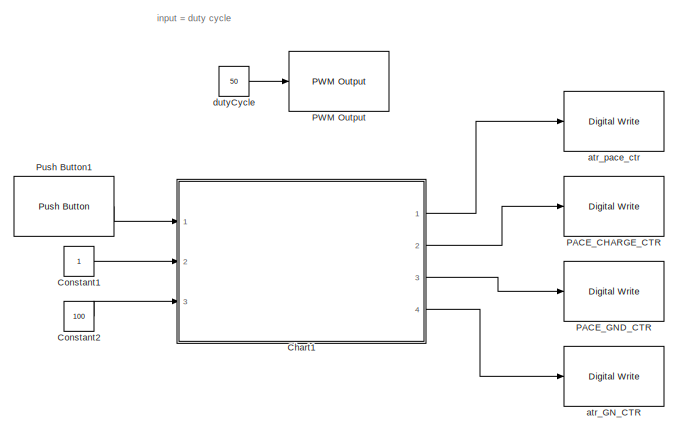
[diagram: root canvas - part 1/3, top right region]
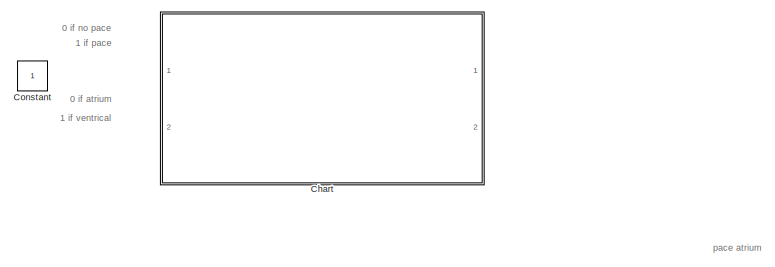
[diagram: root canvas - part 2/3, middle left region]
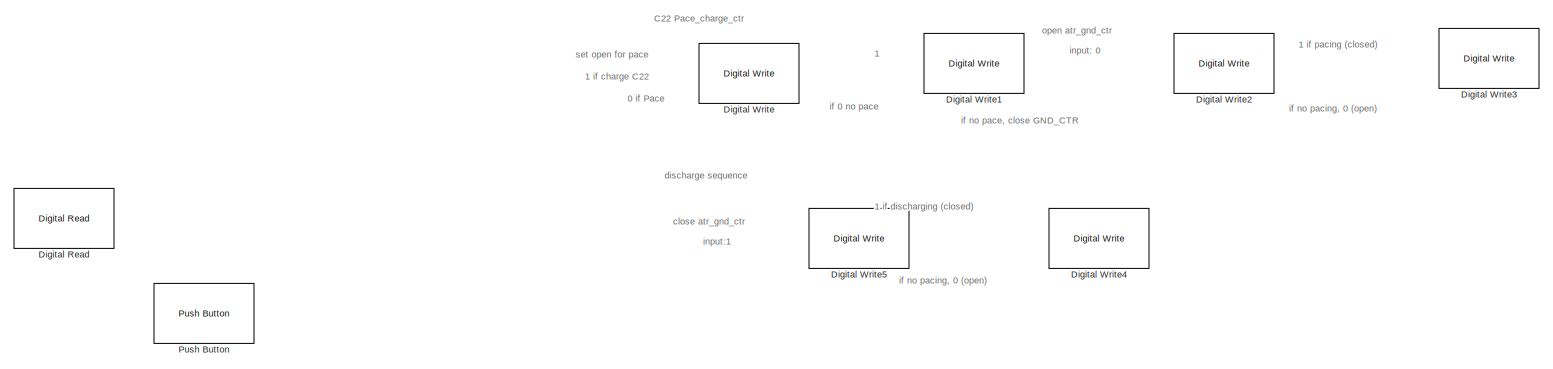
[diagram: root canvas - part 3/3, full width, bottom band]
MODEL slx_1887fcb466a2
KIND model
CONFIG AbsTol = auto
CONFIG EnableMultiTasking = on
CONFIG FixedStep = 1e-3
CONFIG MaxStep = auto
CONFIG MinStep = auto
CONFIG RelTol = 1e-3
CONFIG SampleTimeConstraint = Unconstrained
CONFIG Solver = FixedStepAuto
CONFIG SolverName = FixedStepAuto
CONFIG StartTime = 0.0
CONFIG StopTime = 10.0
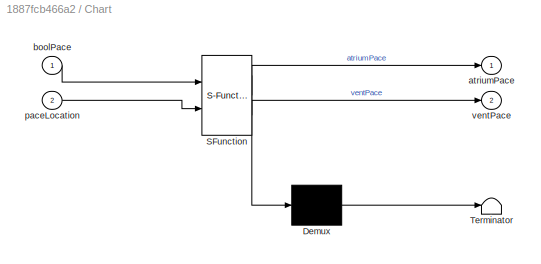
BLOCK [SubSystem] Chart
  Commented = on
  ErrorFcn = Stateflow.Translate.translate
  PermitHierarchicalResolution = ExplicitOnly
  Ports = [2, 2]
  RequestExecContextInheritance = off
  SFBlockType = Chart
  TreatAsAtomicUnit = on
BLOCK [Demux] Chart/ Demux 
  Outputs = 1
  Ports = [1, 1]
BLOCK [S-Function] Chart/ SFunction 
  EnableBusSupport = on
  FunctionName = sf_sfun
  PortCounts = [2 3]
  Ports = [2, 3]
  SFcnIsStateOwnerBlock = off
  SFunctionDeploymentMode = off
  Tag = Stateflow S-Function 3
BLOCK [Terminator] Chart/ Terminator 
BLOCK [Outport] Chart/atriumPace
BLOCK [Inport] Chart/boolPace
BLOCK [Inport] Chart/paceLocation
  Port = 2
BLOCK [Outport] Chart/ventPace
  Port = 2
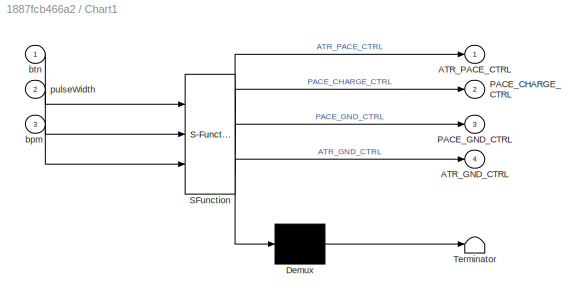
BLOCK [SubSystem] Chart1
  ErrorFcn = Stateflow.Translate.translate
  PermitHierarchicalResolution = ExplicitOnly
  Ports = [3, 4]
  RequestExecContextInheritance = off
  SFBlockType = Chart
  TreatAsAtomicUnit = on
BLOCK [Demux] Chart1/ Demux 
  Outputs = 1
  Ports = [1, 1]
BLOCK [S-Function] Chart1/ SFunction 
  EnableBusSupport = on
  FunctionName = sf_sfun
  PortCounts = [3 5]
  Ports = [3, 5]
  SFcnIsStateOwnerBlock = off
  SFunctionDeploymentMode = off
  Tag = Stateflow S-Function 1
BLOCK [Terminator] Chart1/ Terminator 
BLOCK [Outport] Chart1/ATR_GND_CTRL
  Port = 4
BLOCK [Outport] Chart1/ATR_PACE_CTRL
BLOCK [Outport] Chart1/PACE_CHARGE_CTRL
  Port = 2
BLOCK [Outport] Chart1/PACE_GND_CTRL
  Port = 3
BLOCK [Inport] Chart1/bpm
  Port = 3
BLOCK [Inport] Chart1/btn
BLOCK [Inport] Chart1/pulseWidth
  Port = 2
BLOCK [Constant] Constant
  Commented = on
BLOCK [Constant] Constant1
BLOCK [Constant] Constant2
  Value = 100
BLOCK [Reference] Digital Read  REF=frdmk64flib/Digital Read
  Commented = on
  Ports = [0, 1]
  SourceBlock = frdmk64flib/Digital Read
  SourceProductBaseCode = EC_FRDM_K64F
  SourceType = freedomk64f.DigitalRead
BLOCK [Reference] Digital Write  REF=frdmk64flib/Digital Write
  Commented = on
  Ports = [1]
  SourceBlock = frdmk64flib/Digital Write
  SourceProductBaseCode = EC_FRDM_K64F
  SourceType = freedomk64f.DigitalWrite
BLOCK [Reference] Digital Write1  REF=frdmk64flib/Digital Write
  Commented = on
  Ports = [1]
  SourceBlock = frdmk64flib/Digital Write
  SourceProductBaseCode = EC_FRDM_K64F
  SourceType = freedomk64f.DigitalWrite
BLOCK [Reference] Digital Write2  REF=frdmk64flib/Digital Write
  Commented = on
  Ports = [1]
  SourceBlock = frdmk64flib/Digital Write
  SourceProductBaseCode = EC_FRDM_K64F
  SourceType = freedomk64f.DigitalWrite
BLOCK [Reference] Digital Write3  REF=frdmk64flib/Digital Write
  Commented = on
  Ports = [1]
  SourceBlock = frdmk64flib/Digital Write
  SourceProductBaseCode = EC_FRDM_K64F
  SourceType = freedomk64f.DigitalWrite
BLOCK [Reference] Digital Write4  REF=frdmk64flib/Digital Write
  Commented = on
  Ports = [1]
  SourceBlock = frdmk64flib/Digital Write
  SourceProductBaseCode = EC_FRDM_K64F
  SourceType = freedomk64f.DigitalWrite
BLOCK [Reference] Digital Write5  REF=frdmk64flib/Digital Write
  Commented = on
  Ports = [1]
  SourceBlock = frdmk64flib/Digital Write
  SourceProductBaseCode = EC_FRDM_K64F
  SourceType = freedomk64f.DigitalWrite
BLOCK [Reference] PACE_CHARGE_CTR  REF=frdmk64flib/Digital Write
  Ports = [1]
  SourceBlock = frdmk64flib/Digital Write
  SourceProductBaseCode = EC_FRDM_K64F
  SourceType = freedomk64f.DigitalWrite
BLOCK [Reference] PACE_GND_CTR  REF=frdmk64flib/Digital Write
  Ports = [1]
  SourceBlock = frdmk64flib/Digital Write
  SourceProductBaseCode = EC_FRDM_K64F
  SourceType = freedomk64f.DigitalWrite
BLOCK [Reference] PWM Output  REF=frdmk64flib/PWM Output
  Ports = [1]
  SourceBlock = frdmk64flib/PWM Output
  SourceProductBaseCode = EC_FRDM_K64F
  SourceType = freedomk64f.PWMOutput
BLOCK [Reference] Push Button  REF=frdmk64flib/Push Button
  Commented = on
  Ports = [0, 1]
  SourceBlock = frdmk64flib/Push Button
  SourceProductBaseCode = EC_FRDM_K64F
  SourceType = freedomk64f.PushButton
BLOCK [Reference] Push Button1  REF=frdmk64flib/Push Button
  Ports = [0, 1]
  SourceBlock = frdmk64flib/Push Button
  SourceProductBaseCode = EC_FRDM_K64F
  SourceType = freedomk64f.PushButton
BLOCK [Reference] atr_GN_CTR  REF=frdmk64flib/Digital Write
  Ports = [1]
  SourceBlock = frdmk64flib/Digital Write
  SourceProductBaseCode = EC_FRDM_K64F
  SourceType = freedomk64f.DigitalWrite
BLOCK [Reference] atr_pace_ctr  REF=frdmk64flib/Digital Write
  Ports = [1]
  SourceBlock = frdmk64flib/Digital Write
  SourceProductBaseCode = EC_FRDM_K64F
  SourceType = freedomk64f.DigitalWrite
BLOCK [Constant] dutyCycle
  Value = 50
ANNOTATION (root): 0 if Pace
ANNOTATION (root): 0 if atrium
ANNOTATION (root): 0 if no pace
ANNOTATION (root): 1
ANNOTATION (root): 1 if charge C22
ANNOTATION (root): 1 if discharging (closed)
ANNOTATION (root): 1 if pace
ANNOTATION (root): 1 if pacing (closed)
ANNOTATION (root): 1 if ventrical
ANNOTATION (root): C22 Pace_charge_ctr
ANNOTATION (root): close atr_gnd_ctr
ANNOTATION (root): discharge sequence
ANNOTATION (root): if 0 no pace
ANNOTATION (root): if no pace, close GND_CTR
ANNOTATION (root): if no pacing, 0 (open)
ANNOTATION (root): input = duty cycle
ANNOTATION (root): input: 0
ANNOTATION (root): input:1
ANNOTATION (root): open atr_gnd_ctr
ANNOTATION (root): pace atrium
ANNOTATION (root): set open for pace
LINE Chart1:1 -> atr_pace_ctr:1
LINE Chart1:2 -> PACE_CHARGE_CTR:1
LINE Chart1:3 -> PACE_GND_CTR:1
LINE Chart1:4 -> atr_GN_CTR:1
LINE Constant1:1 -> Chart1:2
LINE Constant2:1 -> Chart1:3
LINE Push Button1:1 -> Chart1:1
LINE dutyCycle:1 -> PWM Output:1
CHART Chart1 states=4 transitions=3
  STATE_LABEL 'beats per minute'
  STATE_LABEL 'CHARGING_AND_DISCHARGE \nentry:\nPACE_GND_CTRL = true; % 10\nATR_PACE_CTRL = false;\nATR_GND_CTRL = true; % 7\nPACE_CHARGE_CTRL = true;\nsecPerBeat = 60/bpm;'
  STATE_LABEL 'PACING\nentry:\nPACE_GND_CTRL = true; %10\nATR_PACE_CTRL = true; % 6\nATR_GND_CTRL = false; %7'
  STATE_LABEL 'DISCHARGE\nentry:\nATR_GND_CTR = true; % 7\nATR_PACE_CTRL = false; % 6'
CHART Chart states=3 transitions=3
  STATE_LABEL 'ATRIUM_PACE\nentry:\natriumPace = True;\nventPace = False;'
  STATE_LABEL 'PACE_CTR\nentry:\n;'
  STATE_LABEL 'VENTRICAL_PACE\nentry:\natriumPace = False;\nventPace = True;'
CHART  states=0 transitions=0
CHART  states=0 transitions=0
